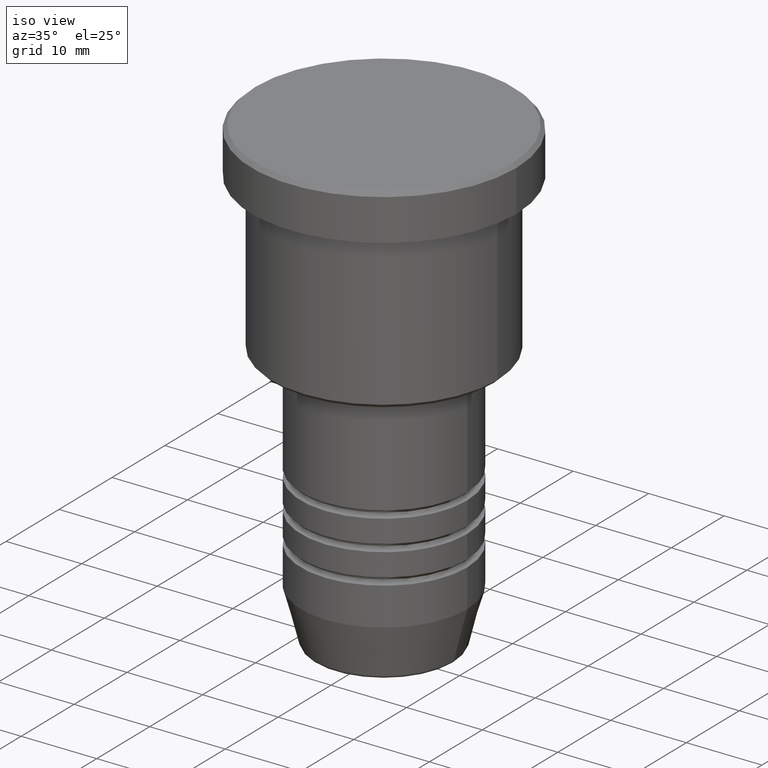
[diagram: clean part render]
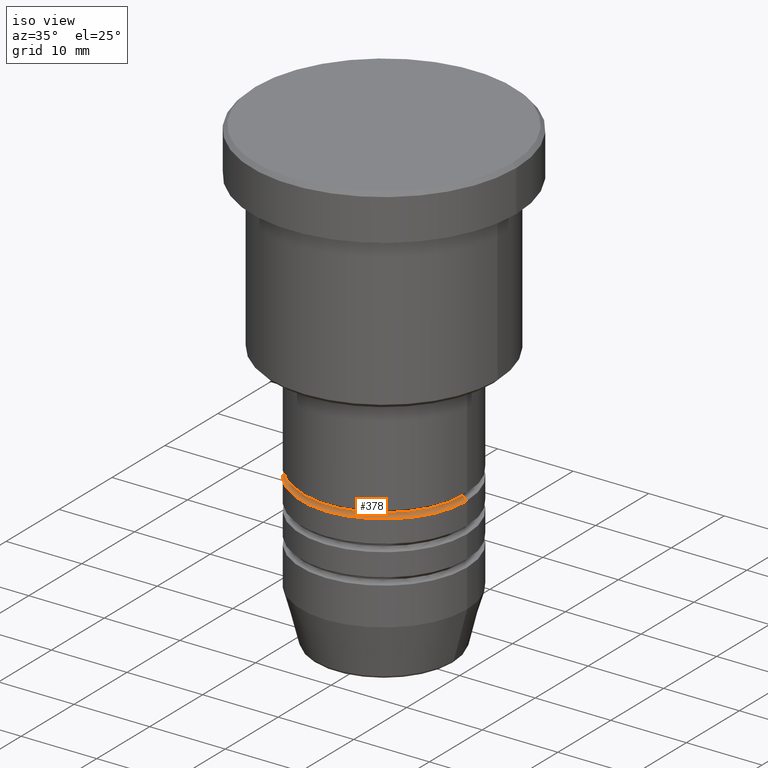
[diagram: same view with one face highlighted and labeled with its STEP entity id]
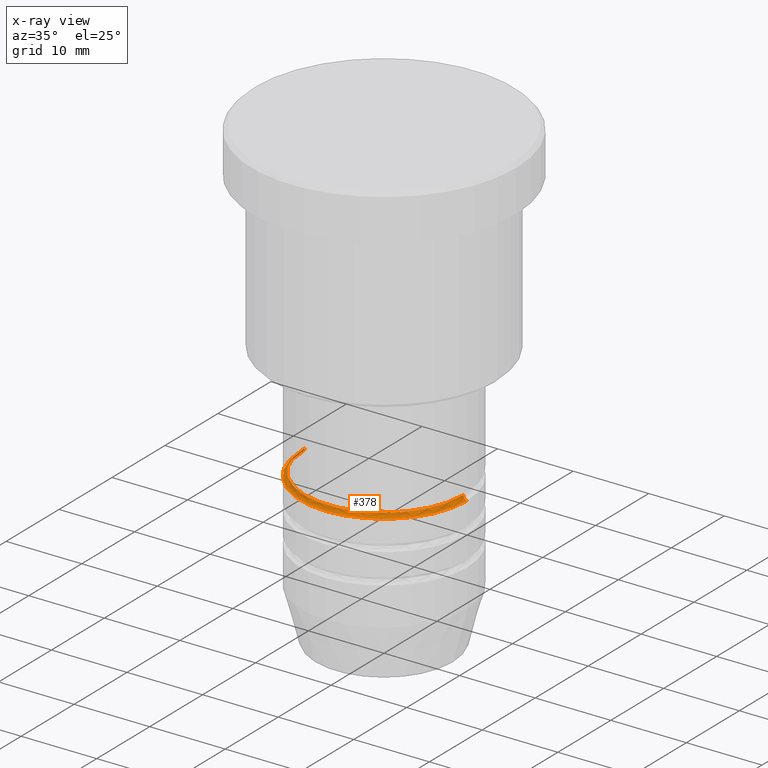
[diagram: x-ray of the same camera — body ghosted, the highlighted face saturated]
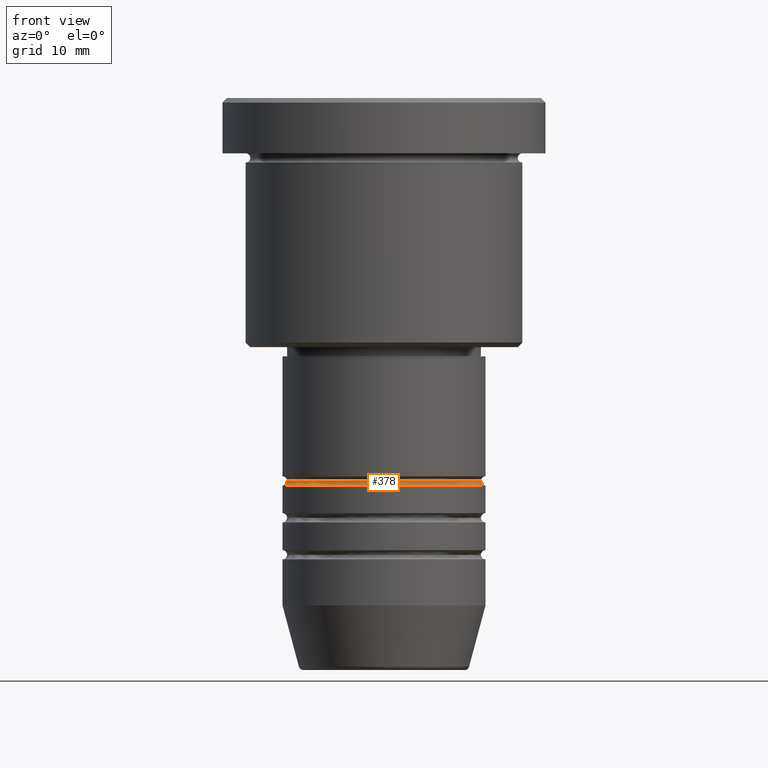
[diagram: same view with one face highlighted and labeled with its STEP entity id]
A machine part, iso view. The second image highlights one B-rep face of the part: STEP entity #378.
The next image is the same camera in x-ray: the body ghosted, the highlighted face saturated — about 2% of this face is hidden behind the body in this view.
A second angle (front view) of the same face is appended — the face is thin or edge-on in the first view.
In plain terms, the highlighted toroidal blend (fillet) surface has major radius 11 mm and minor (blend) radius 0.5 mm.
Its self-contained STEP definition (entity closure, byte-faithful):
#38 = DIRECTION ( 'NONE',  ( -0.000000000000000000, -0.000000000000000000, 1.000000000000000000 ) ) ;
#61 = CARTESIAN_POINT ( 'NONE',  ( 0.000000000000000000, 0.000000000000000000, -41.49999999999989342 ) ) ;
#65 = EDGE_CURVE ( 'NONE', #1101, #484, #273, .T. ) ;
#91 = CIRCLE ( 'NONE', #762, 11.00000000000000000 ) ;
#99 = CARTESIAN_POINT ( 'NONE',  ( 10.50000000000000000, 0.000000000000000000, -41.49999999999989342 ) ) ;
#226 = DIRECTION ( 'NONE',  ( -0.000000000000000000, -0.000000000000000000, 1.000000000000000000 ) ) ;
#258 = DIRECTION ( 'NONE',  ( -1.000000000000000000, 1.224646799147353454E-16, 0.000000000000000000 ) ) ;
#273 = CIRCLE ( 'NONE', #458, 0.5000000000000004441 ) ;
#310 = AXIS2_PLACEMENT_3D ( 'NONE', #706, #1153, #258 ) ;
#312 = DIRECTION ( 'NONE',  ( 1.000000000000000000, 0.000000000000000000, 0.000000000000000000 ) ) ;
#328 = DIRECTION ( 'NONE',  ( 1.000000000000000000, 0.000000000000000000, 0.000000000000000000 ) ) ;
#329 = EDGE_LOOP ( 'NONE', ( #732, #506, #450, #917 ) ) ;
#378 = ADVANCED_FACE ( 'NONE', ( #1122 ), #382, .F. ) ;
#382 = TOROIDAL_SURFACE ( 'NONE', #552, 11.00000000000000178, 0.5000000000000000000 ) ;
#408 = CARTESIAN_POINT ( 'NONE',  ( -11.00000000000000000, 1.347111479062088602E-15, -41.99999999999989342 ) ) ;
#450 = ORIENTED_EDGE ( 'NONE', *, *, #905, .T. ) ;
#458 = AXIS2_PLACEMENT_3D ( 'NONE', #863, #1049, #589 ) ;
#461 = EDGE_CURVE ( 'NONE', #896, #1101, #591, .T. ) ;
#472 = VERTEX_POINT ( 'NONE', #408 ) ;
#484 = VERTEX_POINT ( 'NONE', #964 ) ;
#488 = DIRECTION ( 'NONE',  ( -0.000000000000000000, -0.000000000000000000, 1.000000000000000000 ) ) ;
#506 = ORIENTED_EDGE ( 'NONE', *, *, #886, .T. ) ;
#552 = AXIS2_PLACEMENT_3D ( 'NONE', #61, #226, #761 ) ;
#589 = DIRECTION ( 'NONE',  ( 0.000000000000000000, 0.000000000000000000, -1.000000000000000000 ) ) ;
#591 = CIRCLE ( 'NONE', #707, 10.50000000000000000 ) ;
#673 = CARTESIAN_POINT ( 'NONE',  ( 0.000000000000000000, 0.000000000000000000, -41.99999999999989342 ) ) ;
#706 = CARTESIAN_POINT ( 'NONE',  ( -11.00000000000000178, 1.347111479062088602E-15, -41.49999999999989342 ) ) ;
#707 = AXIS2_PLACEMENT_3D ( 'NONE', #1128, #38, #328 ) ;
#732 = ORIENTED_EDGE ( 'NONE', *, *, #461, .F. ) ;
#761 = DIRECTION ( 'NONE',  ( 1.000000000000000000, 0.000000000000000000, 0.000000000000000000 ) ) ;
#762 = AXIS2_PLACEMENT_3D ( 'NONE', #673, #488, #312 ) ;
#820 = CIRCLE ( 'NONE', #310, 0.5000000000000004441 ) ;
#863 = CARTESIAN_POINT ( 'NONE',  ( 11.00000000000000178, 0.000000000000000000, -41.49999999999989342 ) ) ;
#886 = EDGE_CURVE ( 'NONE', #896, #472, #820, .T. ) ;
#894 = CARTESIAN_POINT ( 'NONE',  ( -10.50000000000000000, 1.316495309083404618E-15, -41.49999999999989342 ) ) ;
#896 = VERTEX_POINT ( 'NONE', #894 ) ;
#905 = EDGE_CURVE ( 'NONE', #472, #484, #91, .T. ) ;
#917 = ORIENTED_EDGE ( 'NONE', *, *, #65, .F. ) ;
#964 = CARTESIAN_POINT ( 'NONE',  ( 11.00000000000000000, 0.000000000000000000, -41.99999999999989342 ) ) ;
#1049 = DIRECTION ( 'NONE',  ( 0.000000000000000000, -1.000000000000000000, 0.000000000000000000 ) ) ;
#1101 = VERTEX_POINT ( 'NONE', #99 ) ;
#1122 = FACE_OUTER_BOUND ( 'NONE', #329, .T. ) ;
#1128 = CARTESIAN_POINT ( 'NONE',  ( 0.000000000000000000, 0.000000000000000000, -41.49999999999989342 ) ) ;
#1153 = DIRECTION ( 'NONE',  ( 1.224646799147353207E-16, 1.000000000000000000, 0.000000000000000000 ) ) ;